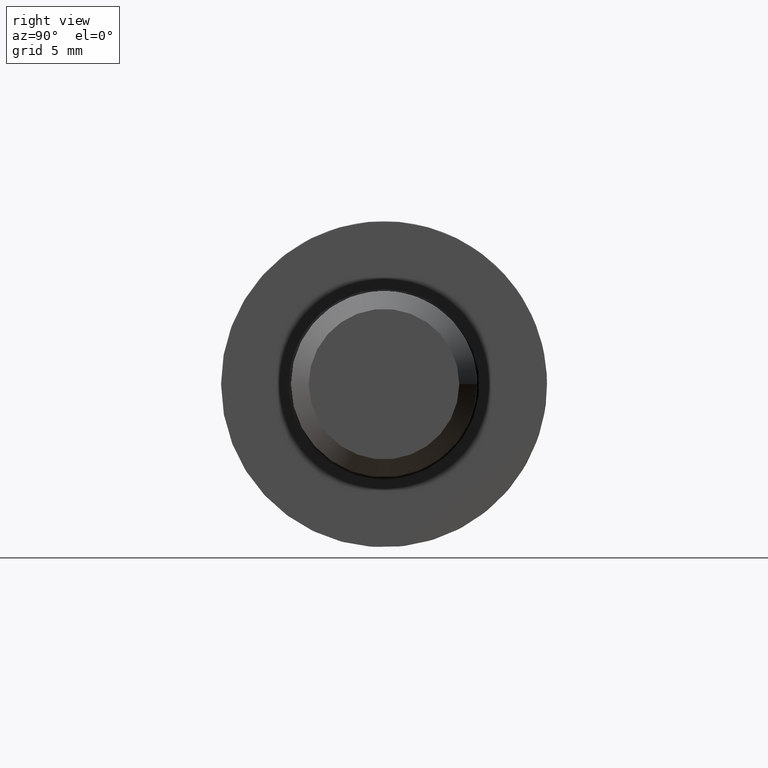
[diagram: clean part render]
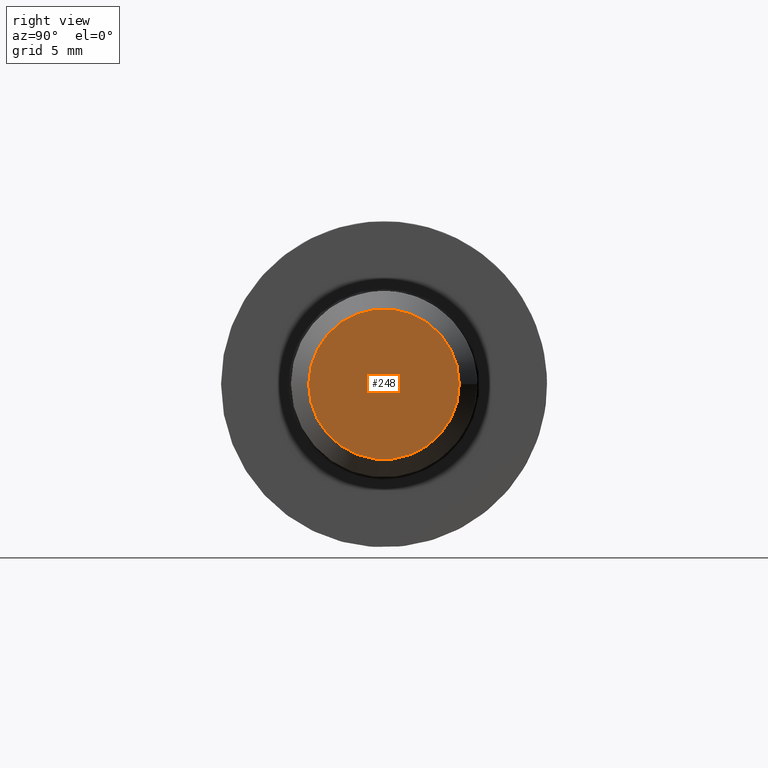
[diagram: same view with one face highlighted and labeled with its STEP entity id]
A machine part, right view. The second image highlights one B-rep face of the part: STEP entity #248.
In plain terms, the highlighted planar face has unit normal (1, 0, 0).
Its self-contained STEP definition (entity closure, byte-faithful):
#28=PLANE('',#294);
#74=FACE_OUTER_BOUND('',#90,.T.);
#90=EDGE_LOOP('',(#191));
#109=CIRCLE('',#293,3.2331875);
#120=VERTEX_POINT('',#397);
#146=EDGE_CURVE('',#120,#120,#109,.T.);
#191=ORIENTED_EDGE('',*,*,#146,.F.);
#248=ADVANCED_FACE('',(#74),#28,.T.);
#293=AXIS2_PLACEMENT_3D('',#398,#333,#334);
#294=AXIS2_PLACEMENT_3D('',#400,#336,#337);
#333=DIRECTION('center_axis',(-1.,-5.98373334115326E-18,0.));
#334=DIRECTION('ref_axis',(5.98373334115326E-18,-1.,0.));
#336=DIRECTION('center_axis',(1.,5.98373334115326E-18,0.));
#337=DIRECTION('ref_axis',(0.,0.,-1.));
#397=CARTESIAN_POINT('',(20.,3.2331875,-3.95951272291823E-16));
#398=CARTESIAN_POINT('Origin',(20.,2.88889491658085E-33,0.));
#400=CARTESIAN_POINT('Origin',(20.,2.,0.));